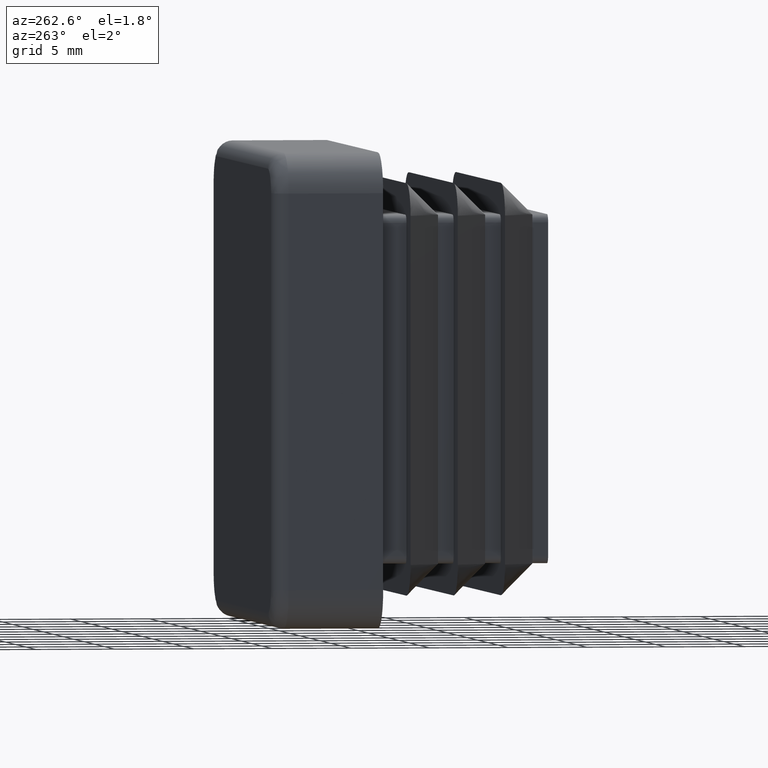
[diagram: clean part render]
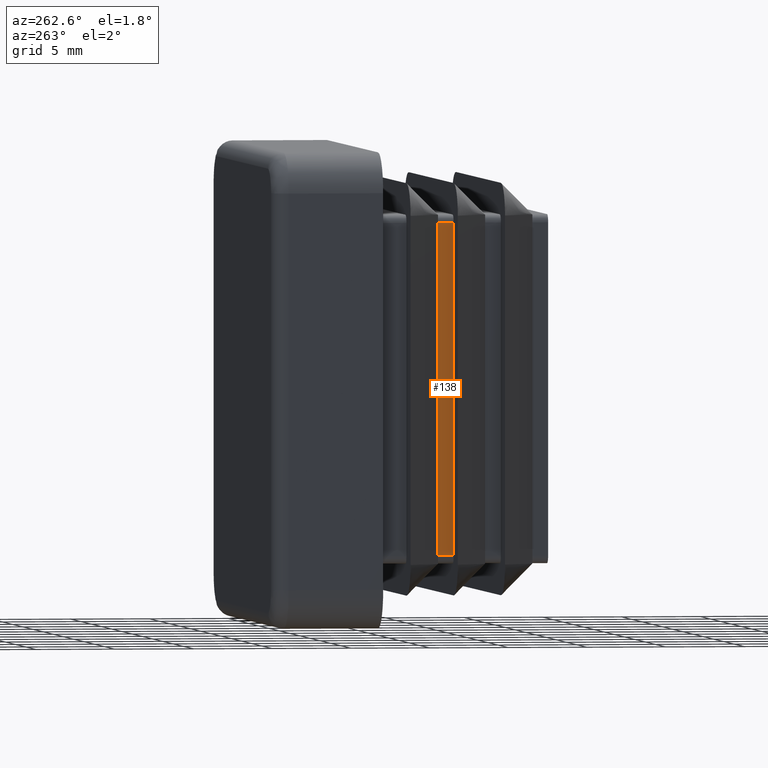
[diagram: same view with one face highlighted and labeled with its STEP entity id]
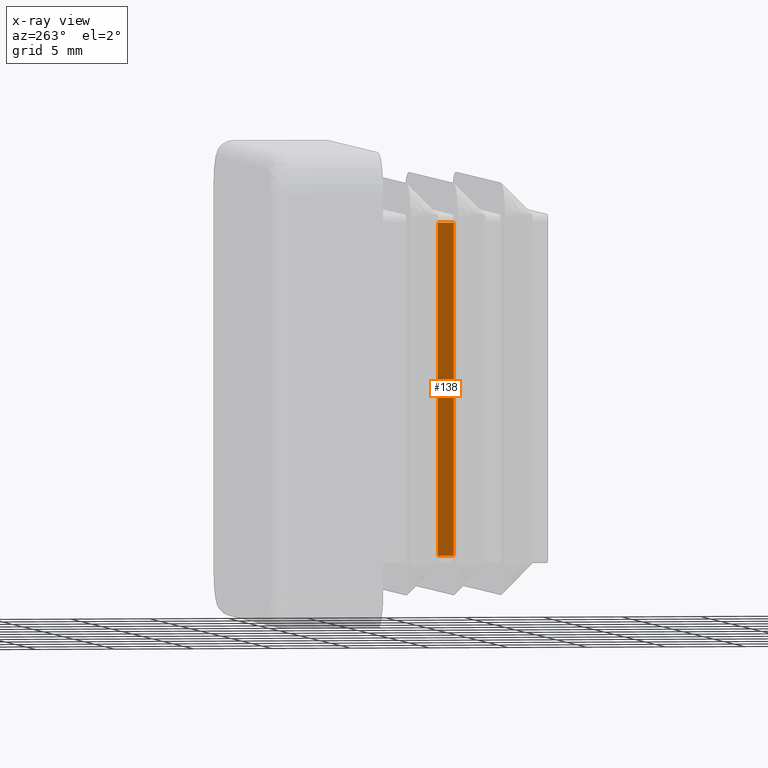
[diagram: x-ray of the same camera — body ghosted, the highlighted face saturated]
A machine part, auxiliary view. The second image highlights one B-rep face of the part: STEP entity #138.
The next image is the same camera in x-ray: the body ghosted, the highlighted face saturated — about 0% of this face is hidden behind the body in this view.
In plain terms, the highlighted planar face has unit normal (1, 0, 0).
Its self-contained STEP definition (entity closure, byte-faithful):
#73=CARTESIAN_POINT('',(-11.0,7.0,10.499999999999996));
#74=VERTEX_POINT('',#73);
#101=CARTESIAN_POINT('',(-11.0,5.950000000000000,11.549999999999995));
#102=DIRECTION('',(1.0,0.0,0.0));
#103=DIRECTION('',(0.0,0.0,-1.0));
#104=AXIS2_PLACEMENT_3D('',#101,#102,#103);
#105=PLANE('',#104);
#106=CARTESIAN_POINT('',(-11.0,7.0,-10.499999999999996));
#107=VERTEX_POINT('',#106);
#108=CARTESIAN_POINT('',(-11.0,7.0,-10.499999999999996));
#109=DIRECTION('',(0.0,0.0,1.0));
#110=VECTOR('',#109,20.999999999999993);
#111=LINE('',#108,#110);
#112=EDGE_CURVE('',#107,#74,#111,.T.);
#113=ORIENTED_EDGE('',*,*,#112,.F.);
#114=CARTESIAN_POINT('',(-11.0,6.0,-10.499999999999996));
#115=VERTEX_POINT('',#114);
#116=CARTESIAN_POINT('',(-11.0,7.0,-10.499999999999996));
#117=DIRECTION('',(0.0,-1.0,0.0));
#118=VECTOR('',#117,1.0);
#119=LINE('',#116,#118);
#120=EDGE_CURVE('',#107,#115,#119,.T.);
#121=ORIENTED_EDGE('',*,*,#120,.T.);
#122=CARTESIAN_POINT('',(-11.0,6.0,10.499999999999996));
#123=VERTEX_POINT('',#122);
#124=CARTESIAN_POINT('',(-11.0,6.0,10.499999999999996));
#125=DIRECTION('',(0.0,0.0,-1.0));
#126=VECTOR('',#125,20.999999999999993);
#127=LINE('',#124,#126);
#128=EDGE_CURVE('',#123,#115,#127,.T.);
#129=ORIENTED_EDGE('',*,*,#128,.F.);
#130=CARTESIAN_POINT('',(-11.0,7.0,10.499999999999996));
#131=DIRECTION('',(0.0,-1.0,0.0));
#132=VECTOR('',#131,1.0);
#133=LINE('',#130,#132);
#134=EDGE_CURVE('',#74,#123,#133,.T.);
#135=ORIENTED_EDGE('',*,*,#134,.F.);
#136=EDGE_LOOP('',(#113,#121,#129,#135));
#137=FACE_OUTER_BOUND('',#136,.T.);
#138=ADVANCED_FACE('',(#137),#105,.F.);